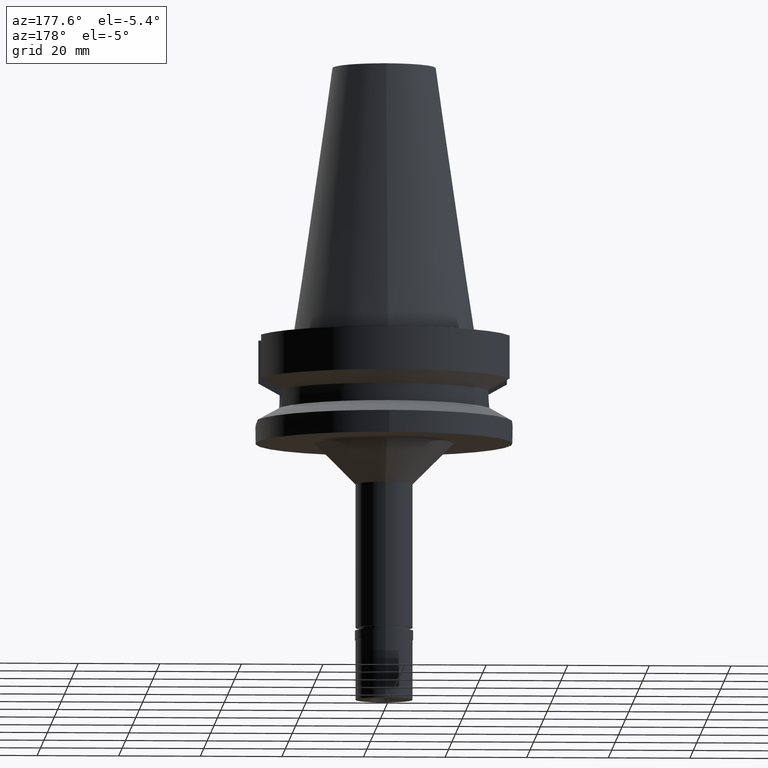
[diagram: clean part render]
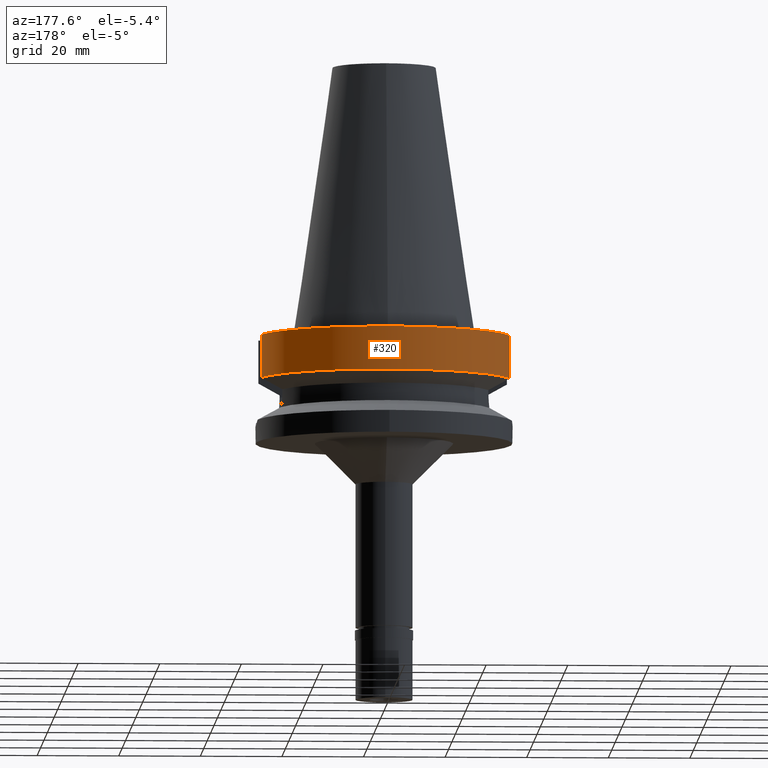
[diagram: same view with one face highlighted and labeled with its STEP entity id]
A machine part, auxiliary view. The second image highlights one B-rep face of the part: STEP entity #320.
In plain terms, the highlighted cylindrical surface (partial cylindrical patch) has radius 31.5 mm, axis along (0, 0, -1).
Its self-contained STEP definition (entity closure, byte-faithful):
#70 = DIRECTION ( 'NONE',  ( 0.0000000000000000000, 1.000000000000000000, 0.0000000000000000000 ) ) ;
#149 = DIRECTION ( 'NONE',  ( 0.0000000000000000000, -1.000000000000000000, 0.0000000000000000000 ) ) ;
#203 = CARTESIAN_POINT ( 'NONE',  ( 0.0000000000000000000, 1.065333950388000029E-14, -11.56550565266999975 ) ) ;
#308 = CARTESIAN_POINT ( 'NONE',  ( 30.45402291389999760, 8.049999276982999774, -11.56551216472999855 ) ) ;
#318 = DIRECTION ( 'NONE',  ( -1.808870115008990849E-08, 6.843175744406962773E-08, 0.9999999999999974465 ) ) ;
#320 = ADVANCED_FACE ( 'NONE', ( #1071 ), #1265, .T. ) ;
#459 = CARTESIAN_POINT ( 'NONE',  ( -30.45402162709999772, 8.050004145093001995, -11.56546831543999865 ) ) ;
#486 = ORIENTED_EDGE ( 'NONE', *, *, #1239, .T. ) ;
#608 = VECTOR ( 'NONE', #2596, 999.9999999999998863 ) ;
#849 = AXIS2_PLACEMENT_3D ( 'NONE', #2510, #935, #1568 ) ;
#935 = DIRECTION ( 'NONE',  ( 0.0000000000000000000, 0.0000000000000000000, -1.000000000000000000 ) ) ;
#1071 = FACE_OUTER_BOUND ( 'NONE', #1678, .T. ) ;
#1217 = AXIS2_PLACEMENT_3D ( 'NONE', #203, #1395, #70 ) ;
#1239 = EDGE_CURVE ( 'NONE', #2178, #1601, #2807, .T. ) ;
#1265 = CYLINDRICAL_SURFACE ( 'NONE', #1354, 31.50000000000000000 ) ;
#1290 = VERTEX_POINT ( 'NONE', #2762 ) ;
#1353 = ORIENTED_EDGE ( 'NONE', *, *, #1400, .F. ) ;
#1354 = AXIS2_PLACEMENT_3D ( 'NONE', #1967, #2420, #149 ) ;
#1395 = DIRECTION ( 'NONE',  ( 0.0000000000000000000, 0.0000000000000000000, 1.000000000000000000 ) ) ;
#1400 = EDGE_CURVE ( 'NONE', #2178, #1290, #1895, .T. ) ;
#1490 = VERTEX_POINT ( 'NONE', #1676 ) ;
#1498 = EDGE_CURVE ( 'NONE', #1490, #1601, #1945, .T. ) ;
#1568 = DIRECTION ( 'NONE',  ( 0.0000000000000000000, 1.000000000000000000, 0.0000000000000000000 ) ) ;
#1601 = VERTEX_POINT ( 'NONE', #459 ) ;
#1676 = CARTESIAN_POINT ( 'NONE',  ( -30.45402272279000044, 8.050000000000000711, -1.000000000000000000 ) ) ;
#1678 = EDGE_LOOP ( 'NONE', ( #2208, #2438, #1353, #486 ) ) ;
#1895 = LINE ( 'NONE', #308, #2403 ) ;
#1945 = LINE ( 'NONE', #2833, #608 ) ;
#1967 = CARTESIAN_POINT ( 'NONE',  ( 0.0000000000000000000, 2.118271568485000005E-14, 72.96999999999999886 ) ) ;
#2154 = EDGE_CURVE ( 'NONE', #1490, #1290, #2166, .T. ) ;
#2166 = CIRCLE ( 'NONE', #849, 31.50000000000000000 ) ;
#2178 = VERTEX_POINT ( 'NONE', #2629 ) ;
#2208 = ORIENTED_EDGE ( 'NONE', *, *, #1498, .F. ) ;
#2403 = VECTOR ( 'NONE', #318, 1000.000000000000114 ) ;
#2420 = DIRECTION ( 'NONE',  ( 0.0000000000000000000, 0.0000000000000000000, -1.000000000000000000 ) ) ;
#2438 = ORIENTED_EDGE ( 'NONE', *, *, #2154, .T. ) ;
#2510 = CARTESIAN_POINT ( 'NONE',  ( 0.0000000000000000000, 2.118271568485000005E-14, -1.000000000000000000 ) ) ;
#2596 = DIRECTION ( 'NONE',  ( 1.037044419192017541E-07, 3.923246117966069113E-07, -0.9999999999999177325 ) ) ;
#2629 = CARTESIAN_POINT ( 'NONE',  ( 30.45402291389999760, 8.049999276982999774, -11.56551216472999855 ) ) ;
#2762 = CARTESIAN_POINT ( 'NONE',  ( 30.45402272279000044, 8.050000000000000711, -1.000000000000000000 ) ) ;
#2807 = CIRCLE ( 'NONE', #1217, 31.50000000000000000 ) ;
#2833 = CARTESIAN_POINT ( 'NONE',  ( -30.45402272279000044, 8.050000000000000711, -1.000000000000000000 ) ) ;